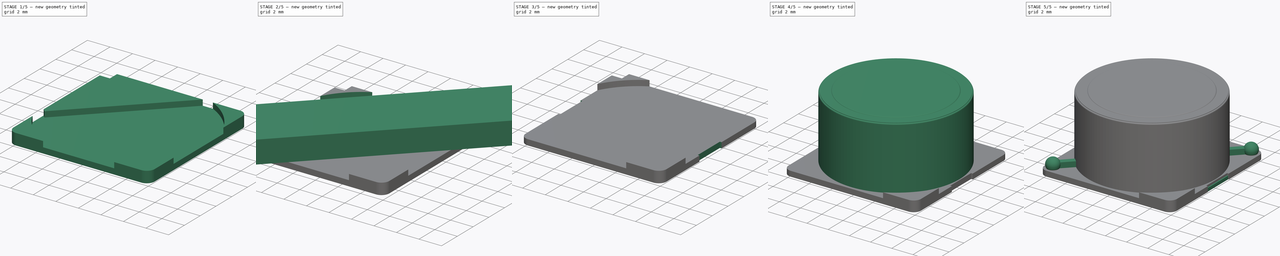
[diagram: build sequence overview — one tinted view per stage of 5, left to right]
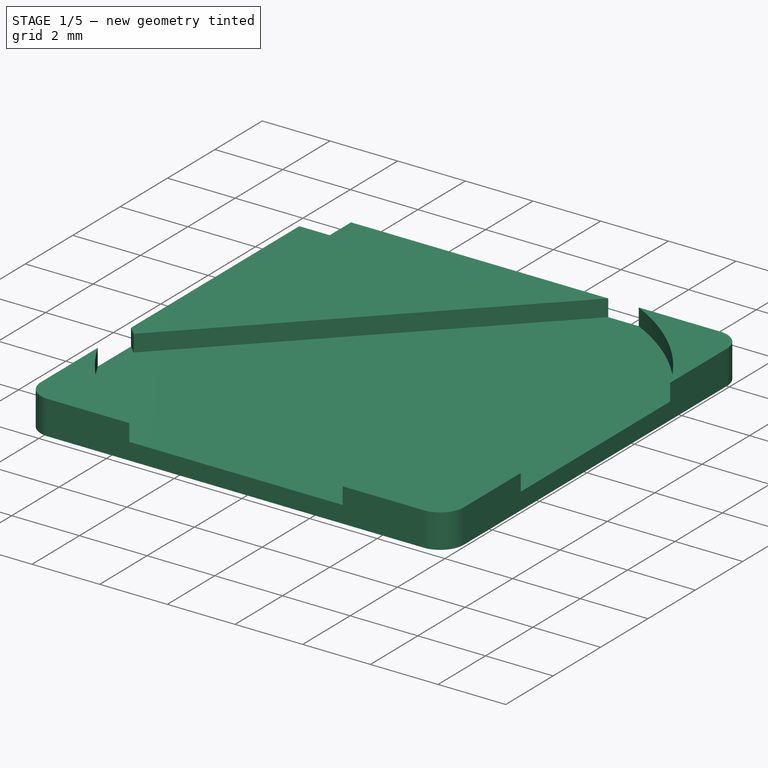
[diagram: stage 1 of 5 — iso view after this stage's code; geometry added in this stage tinted green]
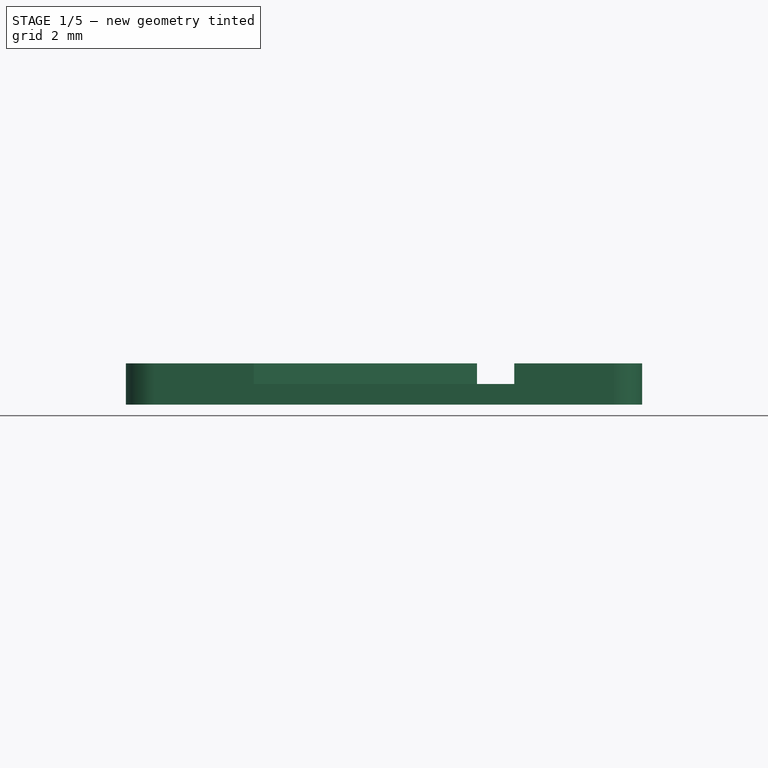
[diagram: stage 1 of 5 — front view after this stage's code; geometry added in this stage tinted green]
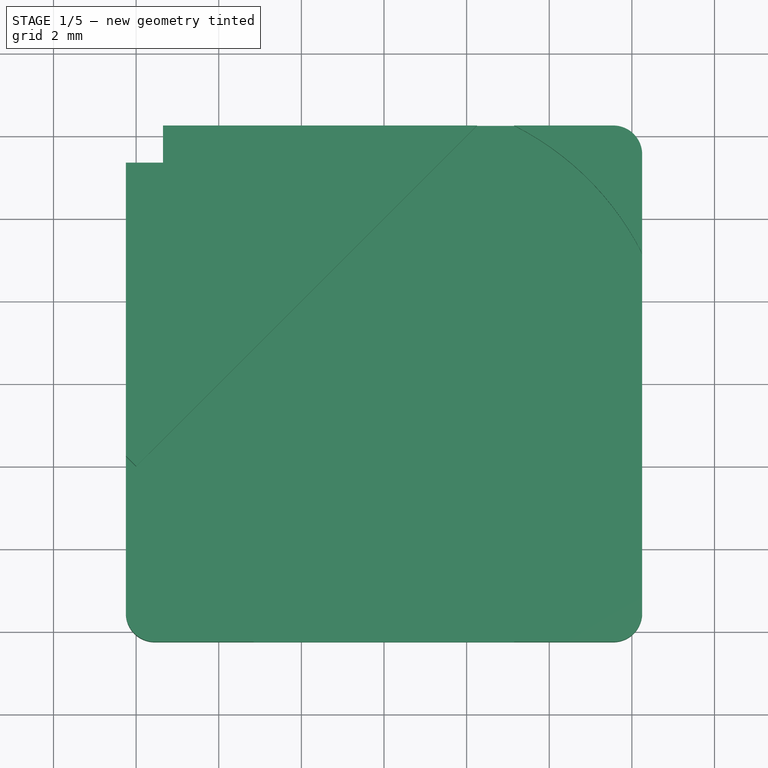
[diagram: stage 1 of 5 — top view after this stage's code; geometry added in this stage tinted green]
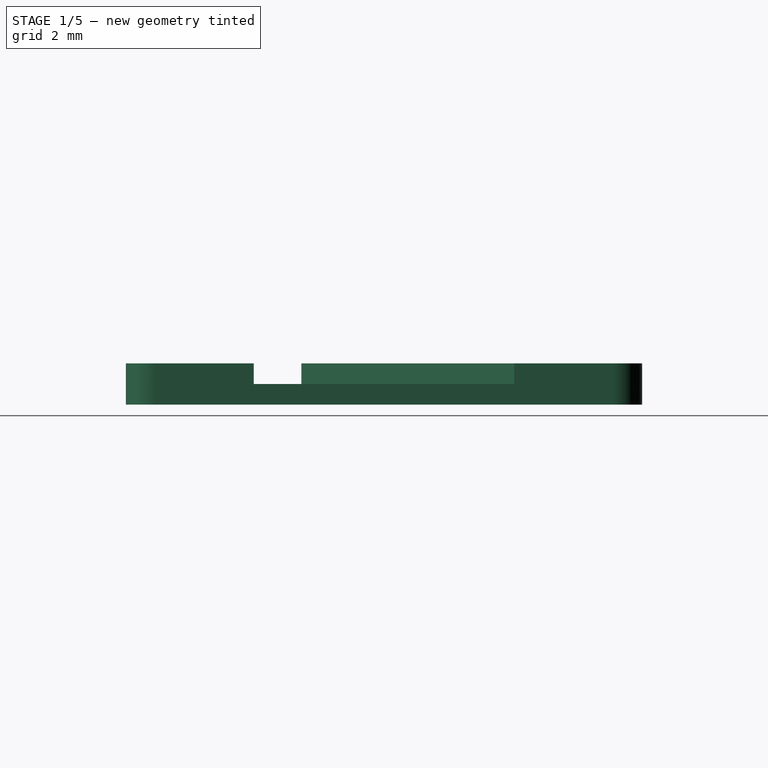
[diagram: stage 1 of 5 — right view after this stage's code; geometry added in this stage tinted green]
FCSTD DOCUMENT  (FreeCAD 0.17R11223 (Git))
Label: L_TDK_SLF12555_SLF12565_SLF12575_02
License: All rights reserved
LicenseURL: http://en.wikipedia.org/wiki/All_rights_reserved
objects: Part::Box×8, Part::Cut×7, Part::Cylinder×5, Part::Sphere×2, Part::Fillet×2, Sketcher::SketchObject×1, PartDesign::Pad×1, PartDesign::Body×1
note: 28 computed .brp shape members not serialized (recipe doc carries the construction recipe); baked Part::Feature solids carry a one-line shape summary decoded from their .brp

FEATURE [Sketcher::SketchObject] Sketch
  MapMode = 5
  Support = -> [XY_Plane]
  sketch-geometry (9):
    g0: LineSegment StartX=-6.25 StartY=-5.55 StartZ=0 EndX=-6.25 EndY=5.35 EndZ=0
    g1: LineSegment StartX=-6.25 StartY=5.35 StartZ=0 EndX=-5.35 EndY=5.35 EndZ=0
    g2: LineSegment StartX=-5.35 StartY=5.35 StartZ=0 EndX=-5.35 EndY=6.25 EndZ=0
    g3: LineSegment StartX=-5.35 StartY=6.25 StartZ=0 EndX=5.55 EndY=6.25 EndZ=0
    g4: ArcOfCircle CenterX=-5.55 CenterY=-5.55 CenterZ=0 NormalX=0 NormalY=0 NormalZ=1 Radius=0.7 StartAngle=3.14159 EndAngle=4.71239
    g5: ArcOfCircle CenterX=5.55 CenterY=-5.55 CenterZ=0 NormalX=0 NormalY=0 NormalZ=1 Radius=0.7 StartAngle=4.71239 EndAngle=6.28319
    g6: ArcOfCircle CenterX=5.55 CenterY=5.55 CenterZ=0 NormalX=0 NormalY=0 NormalZ=1 Radius=0.7 StartAngle=0 EndAngle=1.5708
    g7: LineSegment StartX=-5.55 StartY=-6.25 StartZ=0 EndX=5.55 EndY=-6.25 EndZ=0
    g8: LineSegment StartX=6.25 StartY=-5.55 StartZ=0 EndX=6.25 EndY=5.55 EndZ=0
  constraints (30):
    c: Vertical(g0)
    c: Coincident(g0,g1)
    c: Horizontal(g1)
    c: Coincident(g1,g2)
    c: Vertical(g2)
    c: Coincident(g2,g3)
    c: Horizontal(g3)
    c: Coincident(g4,g0)
    c: Coincident(g6,g3)
    c: Coincident(g7,g4)
    c: Coincident(g7,g5)
    c: Horizontal(g7)
    c: Coincident(g8,g5)
    c: Coincident(g8,g6)
    c: DistanceX(g5,g6) = 0
    c: Radius(g5) = 0.7
    c: Radius(g4) = 0.7
    c: Radius(g6) = 0.7
    c: DistanceX(g1,g1) = 0.9
    c: DistanceY(g2,g2) = 0.9
    c: DistanceY(g4,g0) = 0
    c: DistanceX(g4,g4) = 0
    c: DistanceX(g5,g5) = 0
    c: DistanceY(g5,g5) = 0
    c: DistanceY(g6,g6) = 0
    c: DistanceX(g3,g6) = 0
    c: DistanceX(g0,g5) = 12.5
    c: DistanceY(g5,g3) = 12.5
    c: DistanceX(g-1,g5) = 6.25
    c: DistanceY(g5,g-1) = 6.25
FEATURE [PartDesign::Pad] Pad
  Length = 1
  Length2 = 100
  Profile = -> Sketch
  Type = 0
FEATURE [Part::Cylinder] Cylinder002
  Angle = 360
  AttacherType = Attacher::AttachEngine3D
  Height = 2.4
  Placement = pos=(0,0,0.5) rot=(0,0,1;0rad)
  Radius = 7
FEATURE [Part::Box] Box  label="Kub"
  AttacherType = Attacher::AttachEngine3D
  Height = 5
  Length = 15
  Placement = pos=(-6,-2,0) rot=(0,0,1;0.785398rad)
  Width = 7
FEATURE [Part::Cut] Cut
  Base = -> Cylinder002
  Tool = -> Box
FEATURE [Part::Cut] Cut002
  Base = -> Body
  Tool = -> Cut
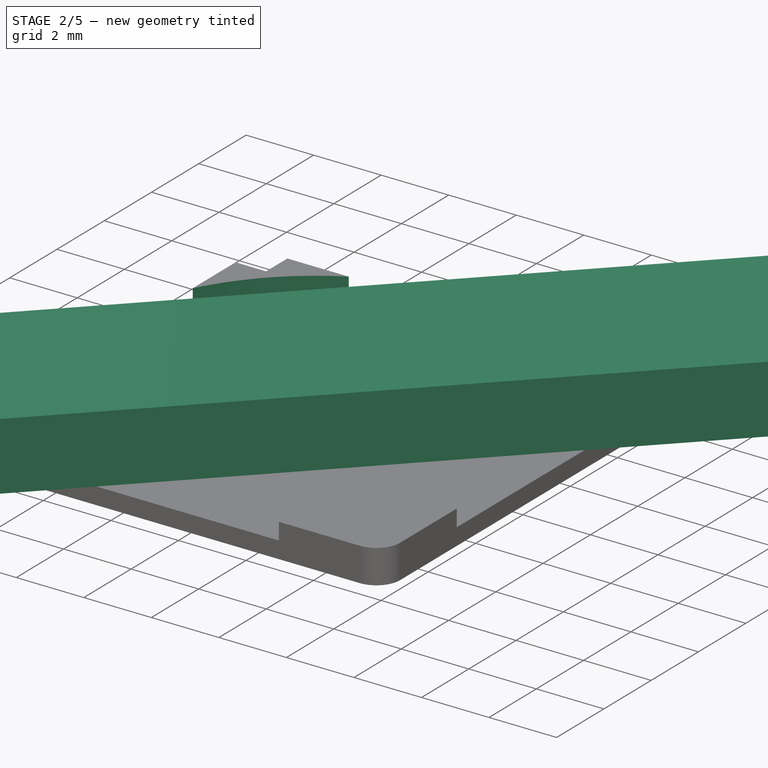
[diagram: stage 2 of 5 — iso view after this stage's code; geometry added in this stage tinted green]
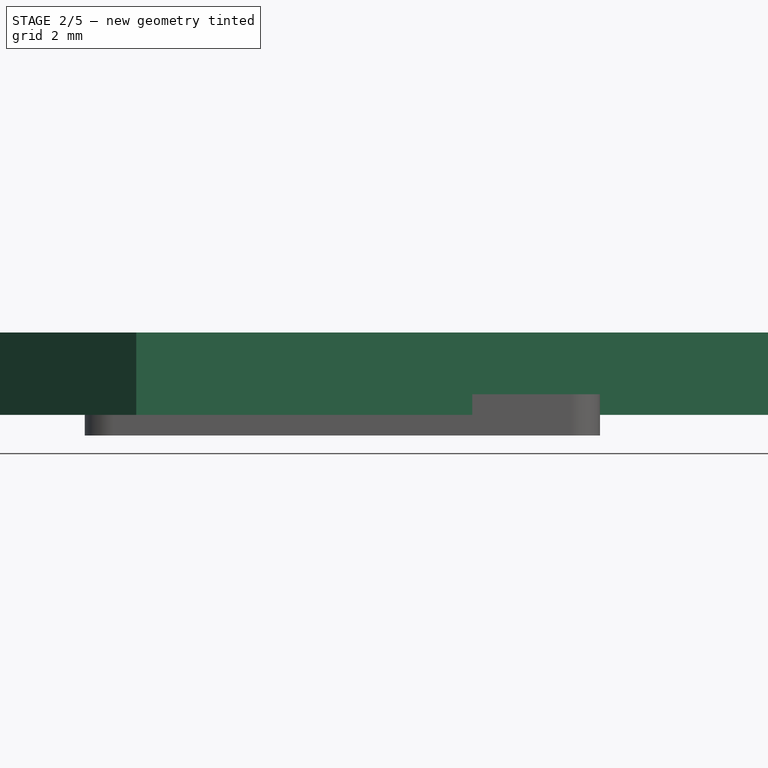
[diagram: stage 2 of 5 — front view after this stage's code; geometry added in this stage tinted green]
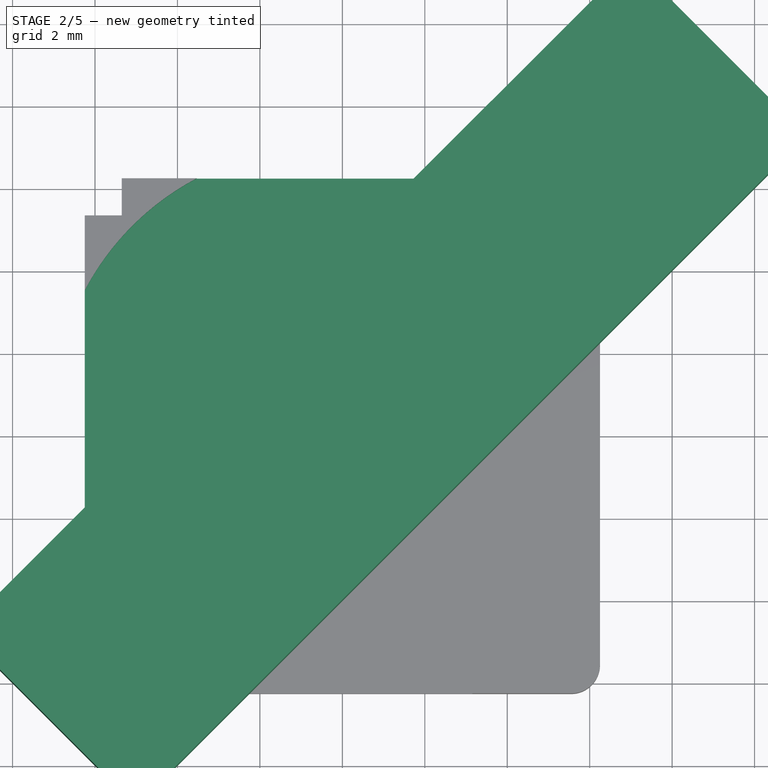
[diagram: stage 2 of 5 — top view after this stage's code; geometry added in this stage tinted green]
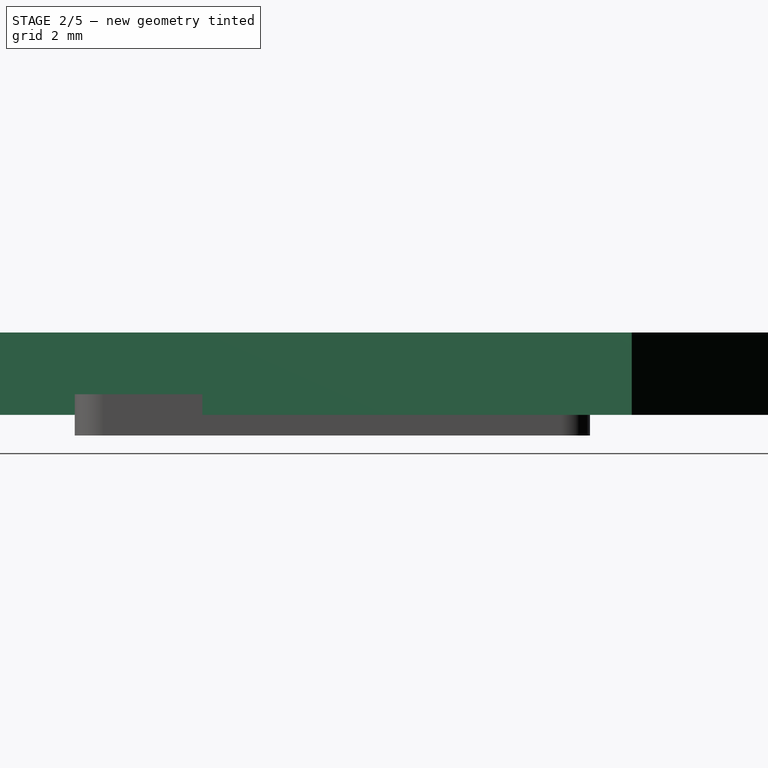
[diagram: stage 2 of 5 — right view after this stage's code; geometry added in this stage tinted green]
FEATURE [Part::Cylinder] Cylinder003
  Angle = 360
  AttacherType = Attacher::AttachEngine3D
  Height = 2.4
  Placement = pos=(-0.5,0.5,0.5) rot=(0,0,1;0rad)
  Radius = 6.5
FEATURE [Part::Box] Box001  label="Kub001"
  AttacherType = Attacher::AttachEngine3D
  Height = 5
  Length = 15
  Placement = pos=(1.5,-10.5,0) rot=(0,0,1;0.785398rad)
  Width = 10
FEATURE [Part::Box] Box002  label="Kub002"
  AttacherType = Attacher::AttachEngine3D
  Height = 2
  Length = 23
  Placement = pos=(-5,-9,0.5) rot=(0,0,1;0.785398rad)
  Width = 6
FEATURE [Part::Cut] Cut001
  Base = -> Cylinder003
  Tool = -> Box001
FEATURE [Part::Cut] Cut003
  Base = -> Cut002
  Tool = -> Cut001
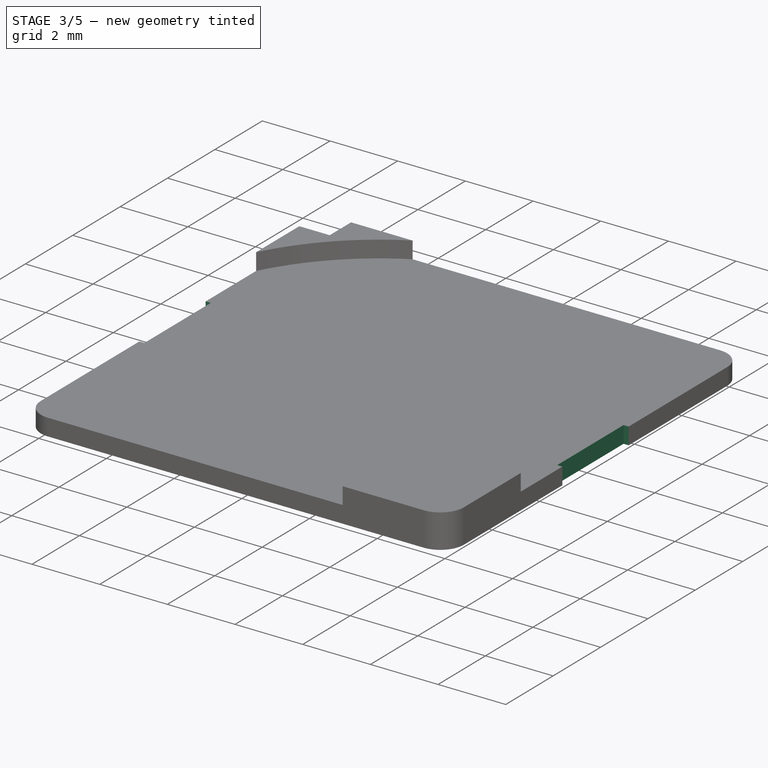
[diagram: stage 3 of 5 — iso view after this stage's code; geometry added in this stage tinted green]
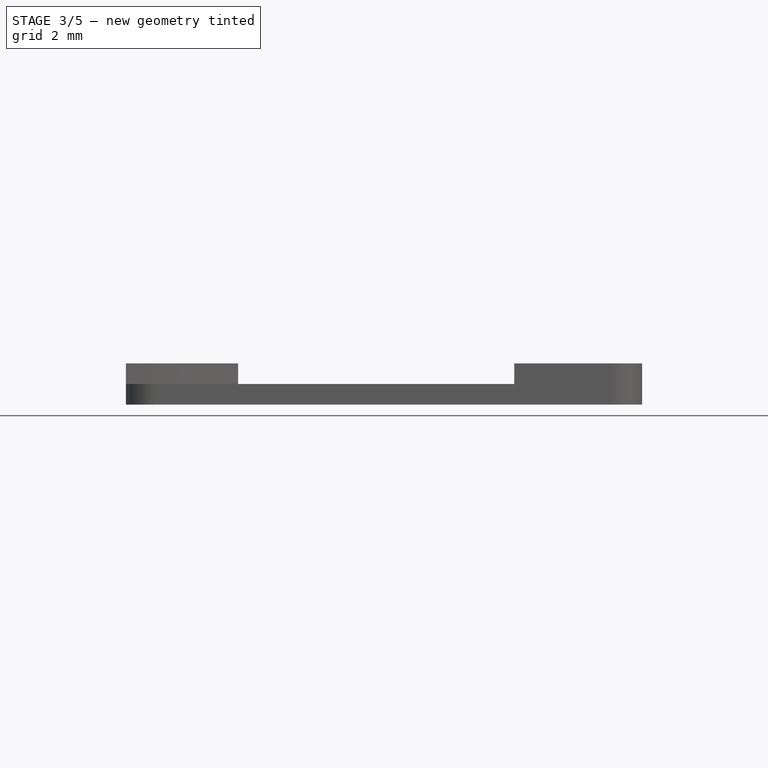
[diagram: stage 3 of 5 — front view after this stage's code; geometry added in this stage tinted green]
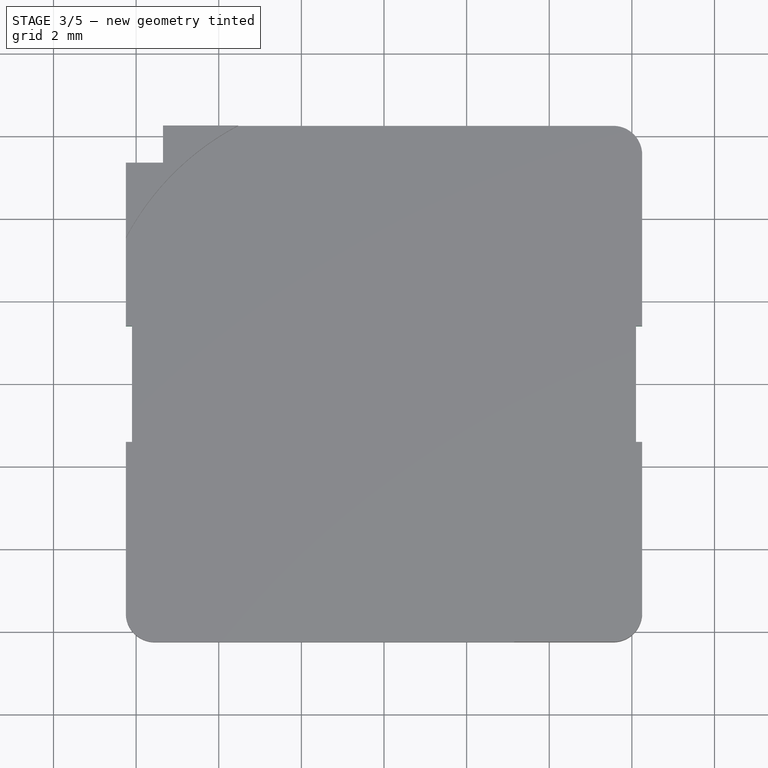
[diagram: stage 3 of 5 — top view after this stage's code; geometry added in this stage tinted green]
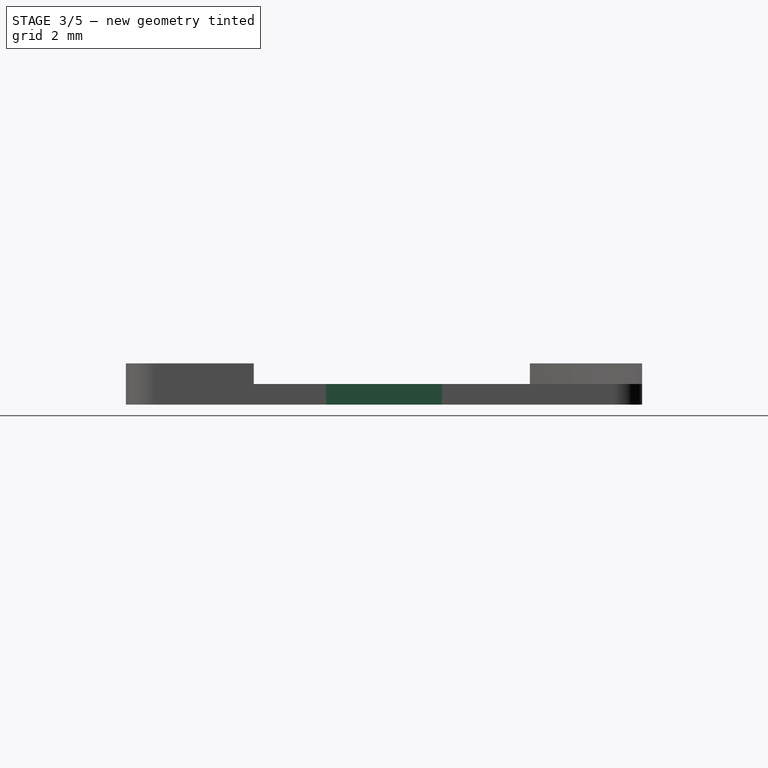
[diagram: stage 3 of 5 — right view after this stage's code; geometry added in this stage tinted green]
FEATURE [Part::Box] Box004  label="Kub004"
  AttacherType = Attacher::AttachEngine3D
  Height = 1
  Length = 0.2
  Placement = pos=(6.1,-1.4,0) rot=(0,0,1;0rad)
  Width = 2.8
FEATURE [Part::Box] Box006  label="Kub006"
  AttacherType = Attacher::AttachEngine3D
  Height = 1
  Length = 0.2
  Placement = pos=(-6.3,-1.4,0) rot=(0,0,1;0rad)
  Width = 2.8
FEATURE [Part::Cut] Cut004
  Base = -> Cut003
  Tool = -> Box002
FEATURE [Part::Cut] Cut005
  Base = -> Cut004
  Tool = -> Box004
FEATURE [Part::Cut] Cut006
  Base = -> Cut005
  Tool = -> Box006
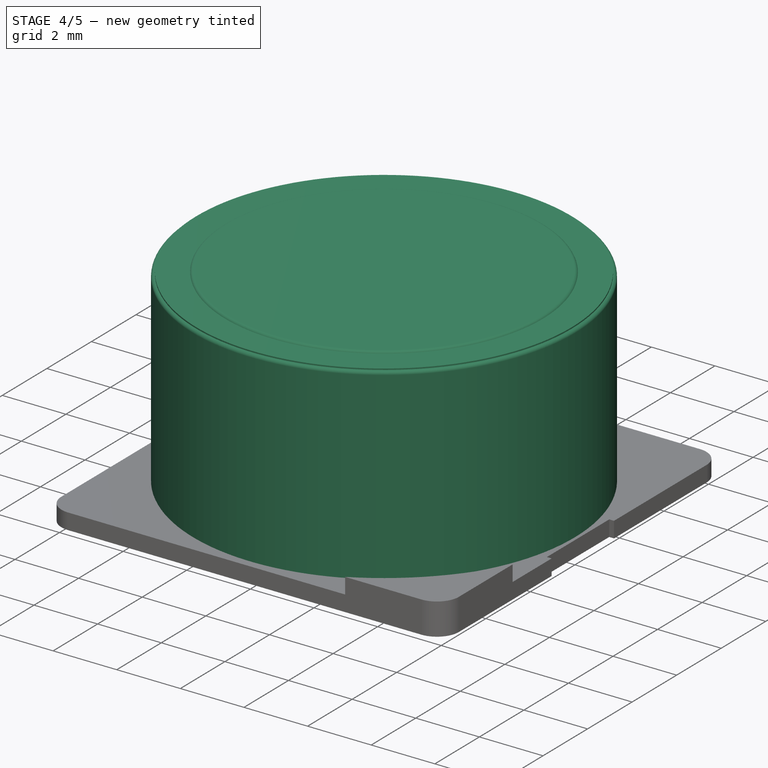
[diagram: stage 4 of 5 — iso view after this stage's code; geometry added in this stage tinted green]
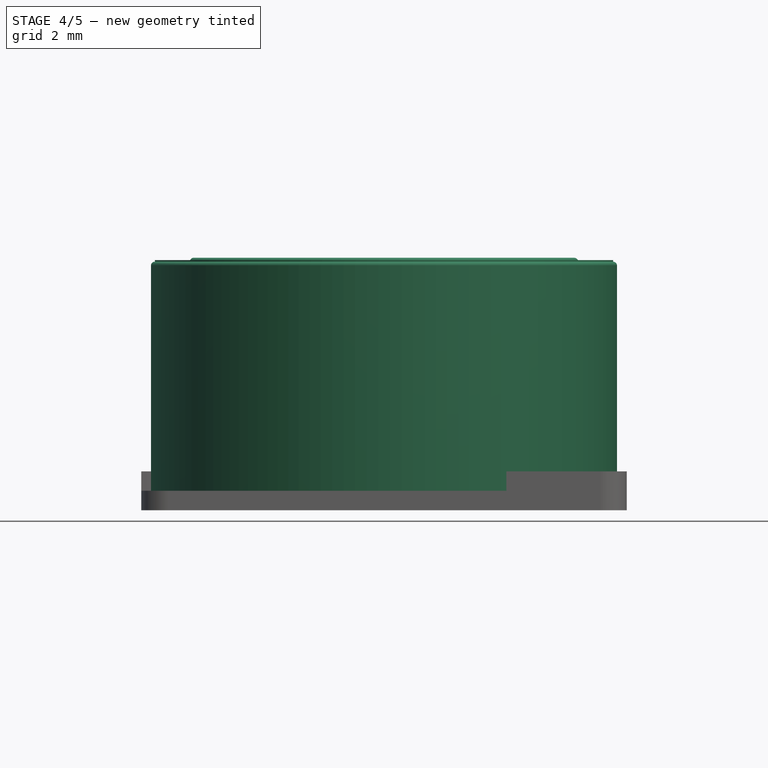
[diagram: stage 4 of 5 — front view after this stage's code; geometry added in this stage tinted green]
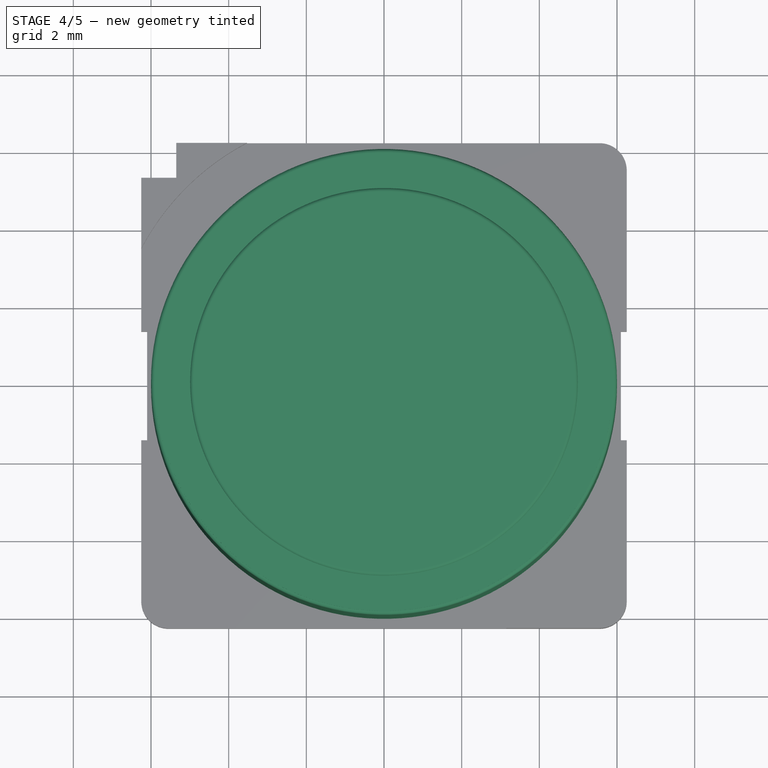
[diagram: stage 4 of 5 — top view after this stage's code; geometry added in this stage tinted green]
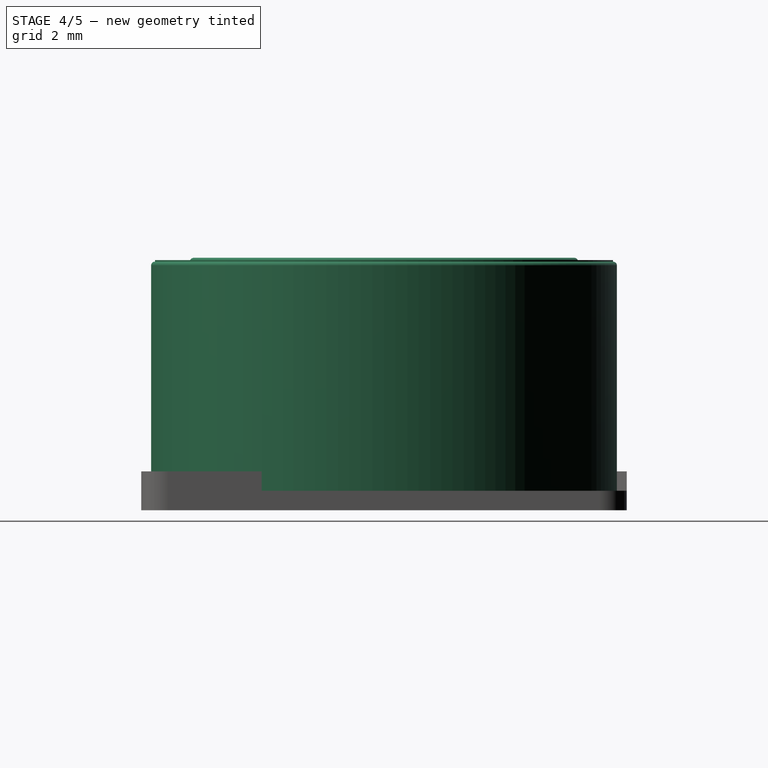
[diagram: stage 4 of 5 — right view after this stage's code; geometry added in this stage tinted green]
FEATURE [PartDesign::Body] Body
  Group = -> [Sketch,Pad]
  Origin = -> BodyOrigin
  Tip = -> Pad
FEATURE [Part::Cylinder] Cylinder
  Angle = 360
  AttacherType = Attacher::AttachEngine3D
  Height = 6.4
  Radius = 6
FEATURE [Part::Cylinder] Cylinder001
  Angle = 360
  AttacherType = Attacher::AttachEngine3D
  Height = 6.5
  Radius = 5
FEATURE [Part::Fillet] Fillet
  Base = -> Cylinder
  Edges = 1 edges r=0.1: [Edge1]
FEATURE [Part::Fillet] Fillet001
  Base = -> Cylinder001
  Edges = 1 edges r=0.1: [Edge1]
FEATURE [Part::Cylinder] Cylinder004
  Angle = 360
  AttacherType = Attacher::AttachEngine3D
  Height = 0.3
  Placement = pos=(0,0,6.14) rot=(0,0,1;0rad)
  Radius = 5.9
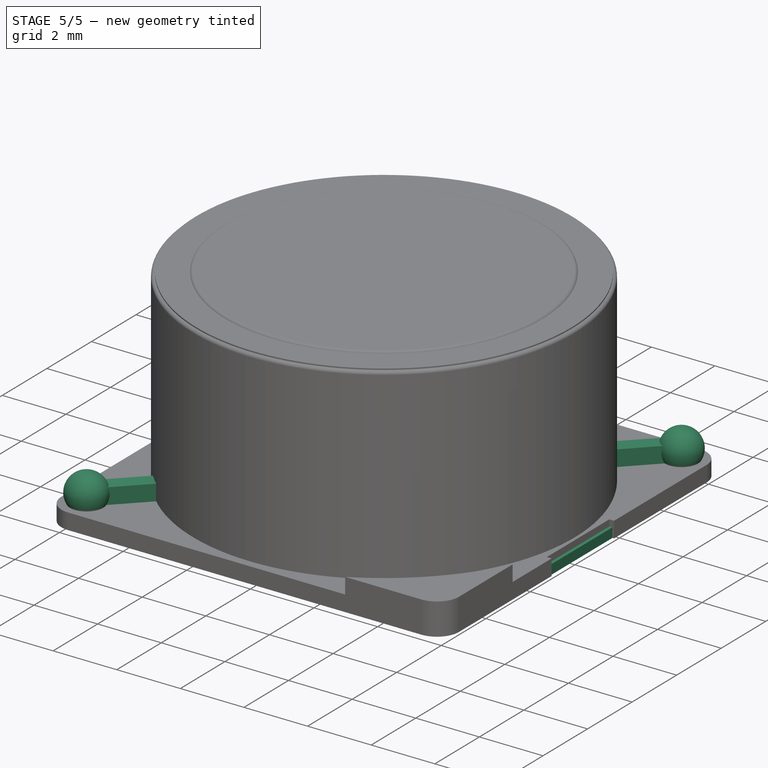
[diagram: stage 5 of 5 — iso view after this stage's code; geometry added in this stage tinted green]
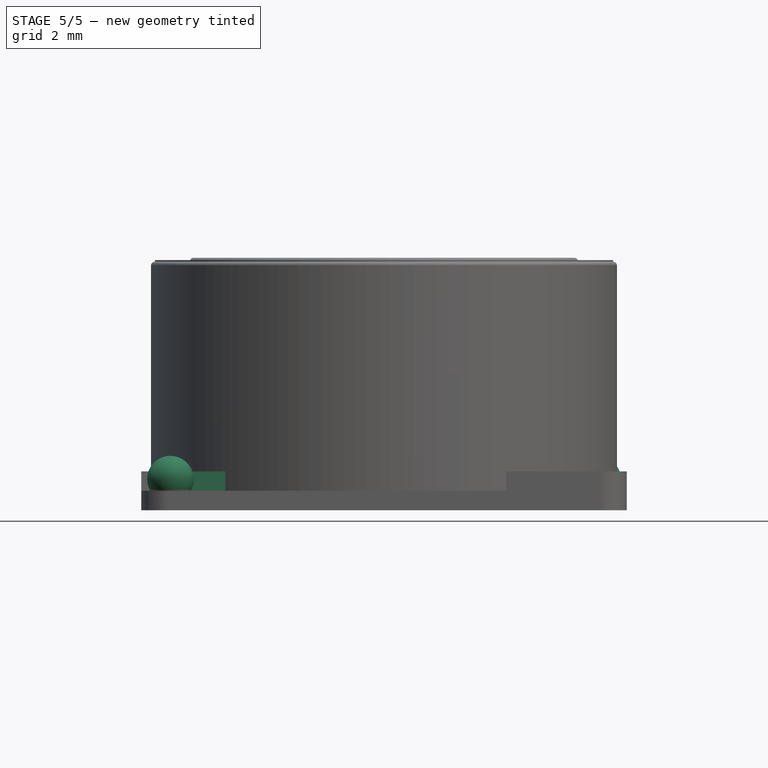
[diagram: stage 5 of 5 — front view after this stage's code; geometry added in this stage tinted green]
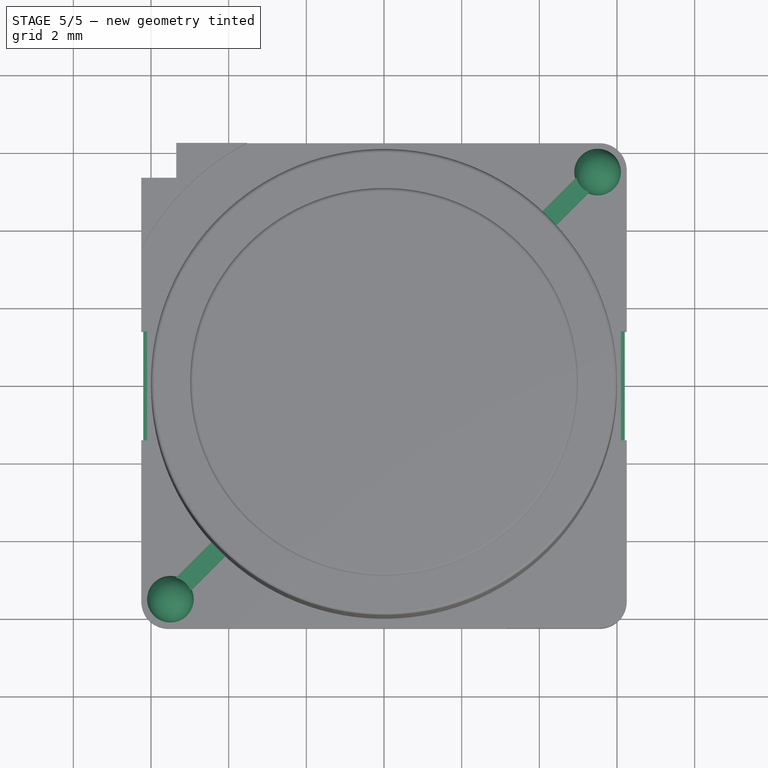
[diagram: stage 5 of 5 — top view after this stage's code; geometry added in this stage tinted green]
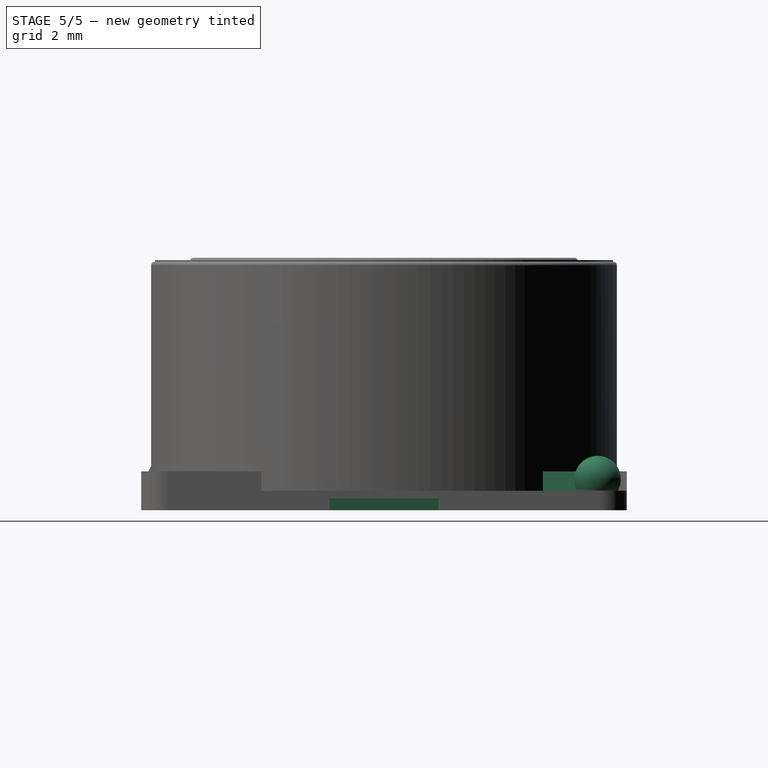
[diagram: stage 5 of 5 — right view after this stage's code; geometry added in this stage tinted green]
FEATURE [Part::Sphere] Sphere  label="Sfär"
  Angle1 = -90
  Angle2 = 90
  Angle3 = 360
  AttacherType = Attacher::AttachEngine3D
  Placement = pos=(5.5,5.5,0.8) rot=(0,0,1;0rad)
  Radius = 0.6
FEATURE [Part::Sphere] Sphere001  label="Sfär001"
  Angle1 = -90
  Angle2 = 90
  Angle3 = 360
  AttacherType = Attacher::AttachEngine3D
  Placement = pos=(-5.5,-5.5,0.8) rot=(0,0,1;0rad)
  Radius = 0.6
FEATURE [Part::Box] Box003  label="Kub003"
  AttacherType = Attacher::AttachEngine3D
  Height = 0.5
  Length = 15.5
  Placement = pos=(-5.2,-5.5,0.5) rot=(0,0,1;0.785398rad)
  Width = 0.5
FEATURE [Part::Box] Box005  label="Kub005"
  AttacherType = Attacher::AttachEngine3D
  Height = 0.3
  Length = 0.9
  Placement = pos=(5.3,-1.4,0) rot=(0,0,1;0rad)
  Width = 2.8
FEATURE [Part::Box] Box007  label="Kub007"
  AttacherType = Attacher::AttachEngine3D
  Height = 0.3
  Length = 0.9
  Placement = pos=(-6.2,-1.4,0) rot=(0,0,1;0rad)
  Width = 2.8
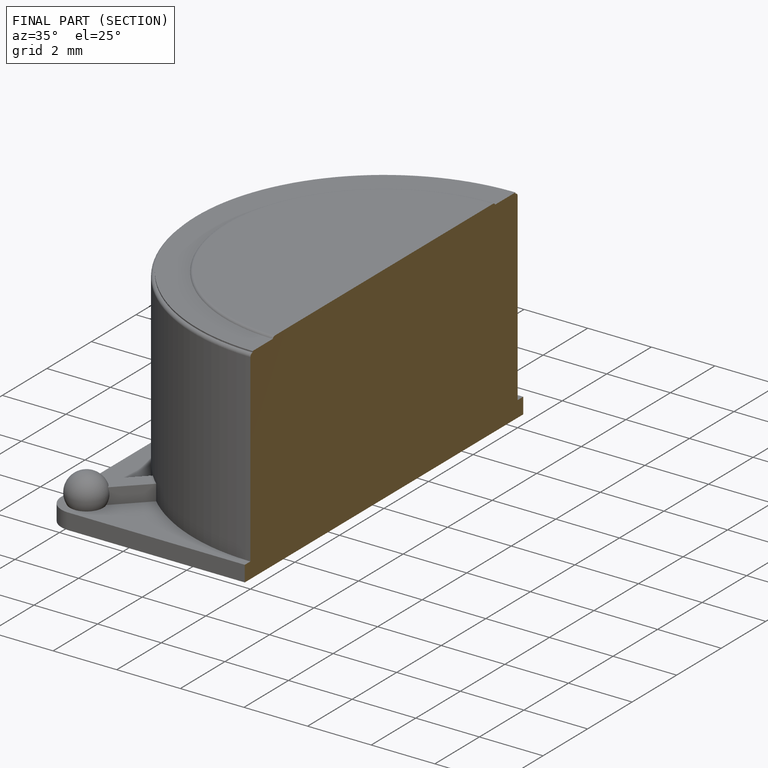
[diagram: finished part — half-section view (interior)]
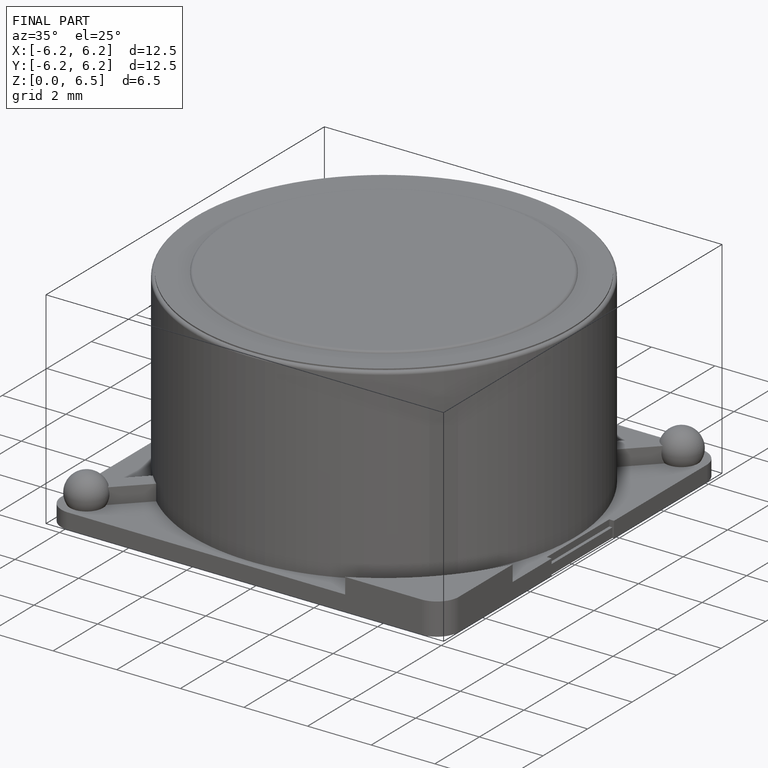
[diagram: finished part — iso view with bounding-box wireframe]
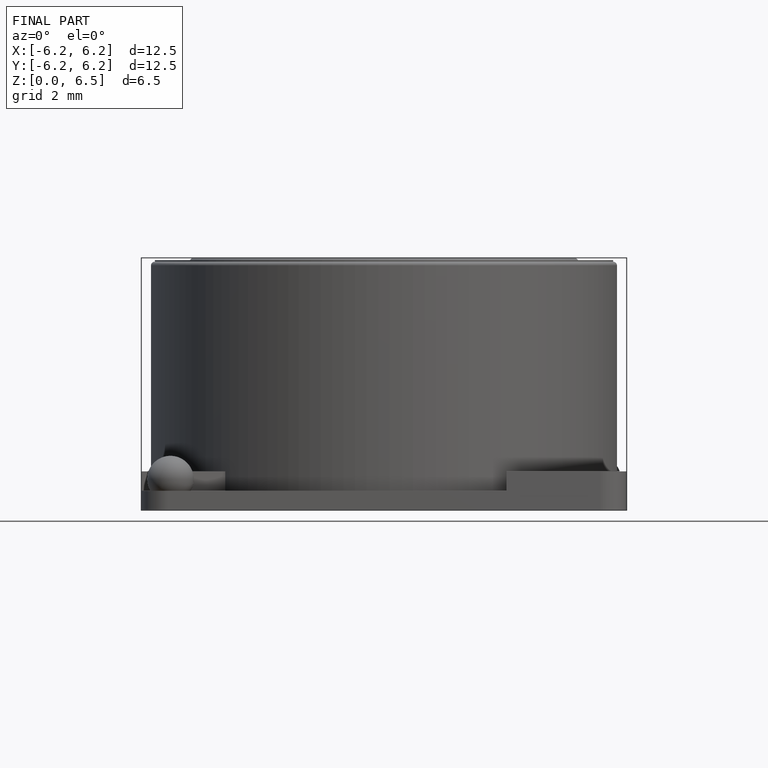
[diagram: finished part — front view with bounding-box wireframe]
